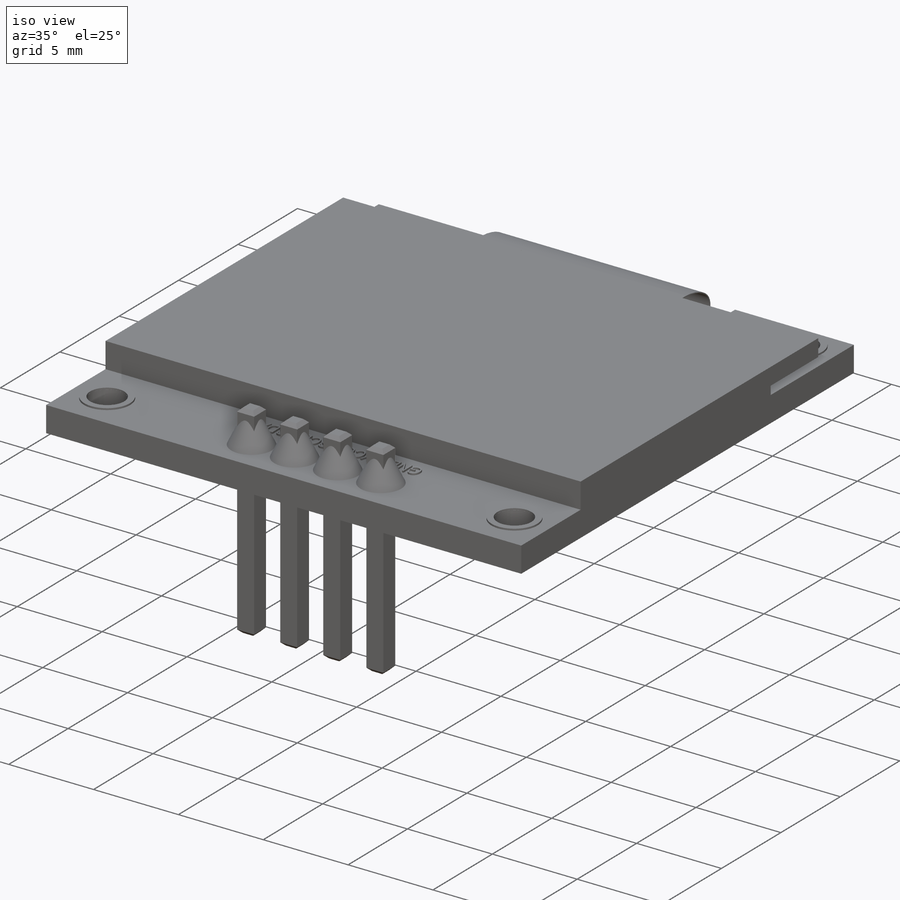
[diagram: iso view]
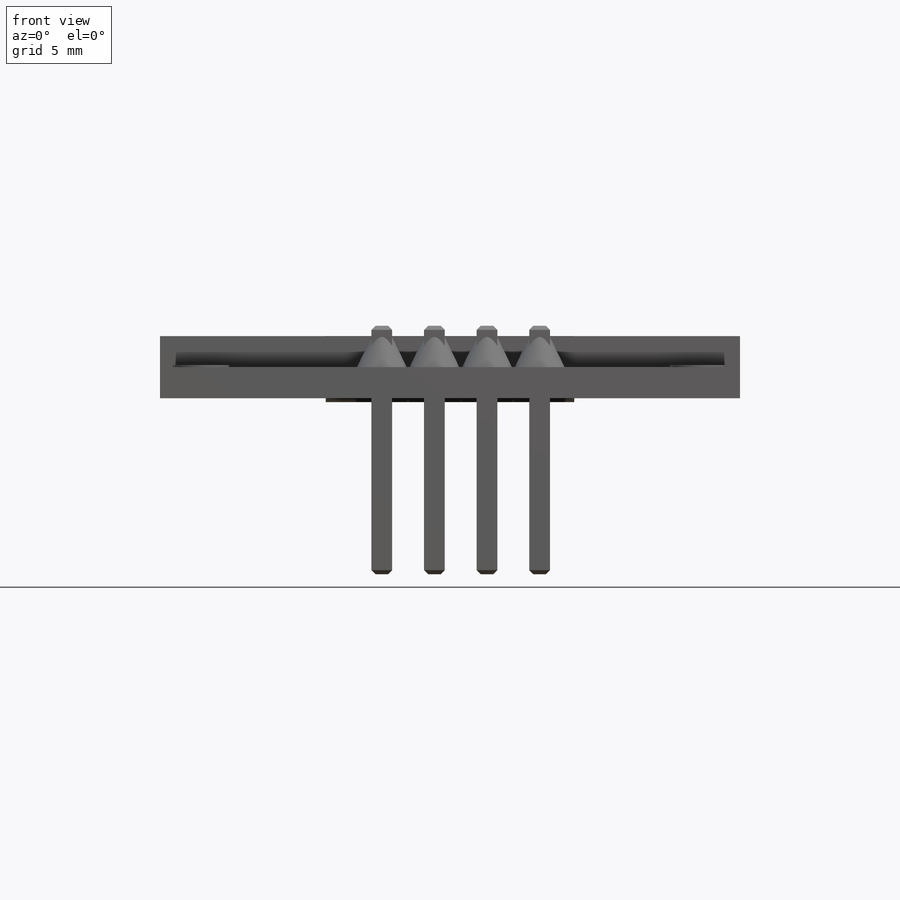
[diagram: front view]
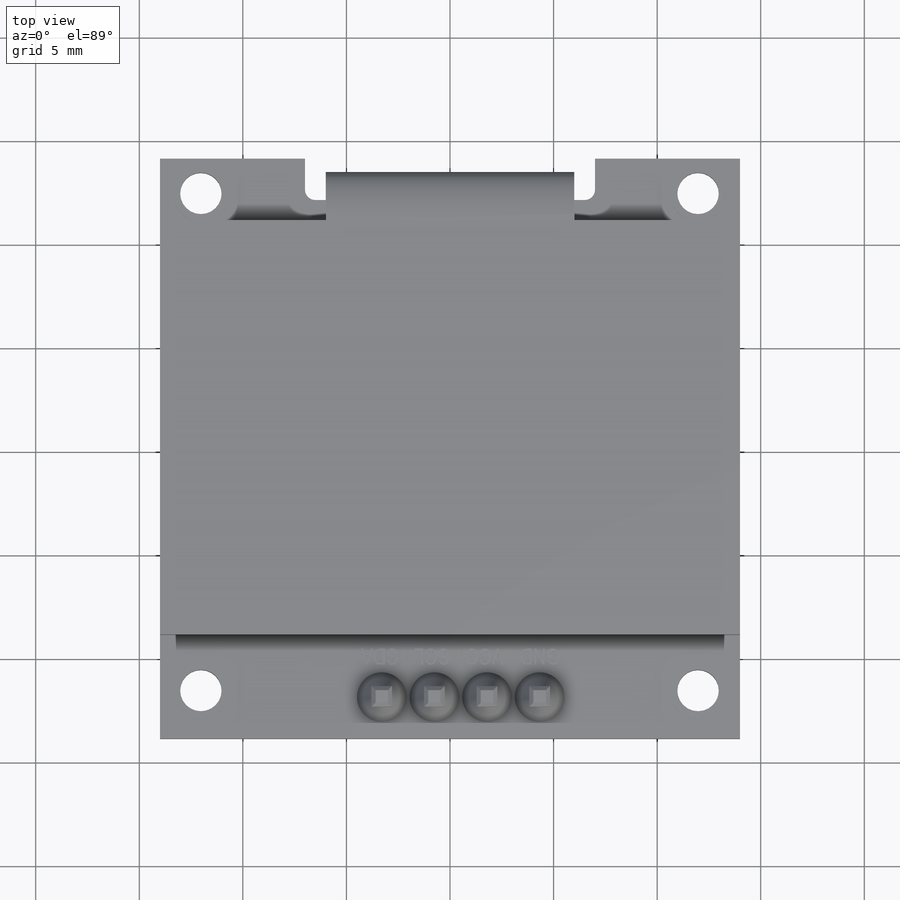
[diagram: top view]
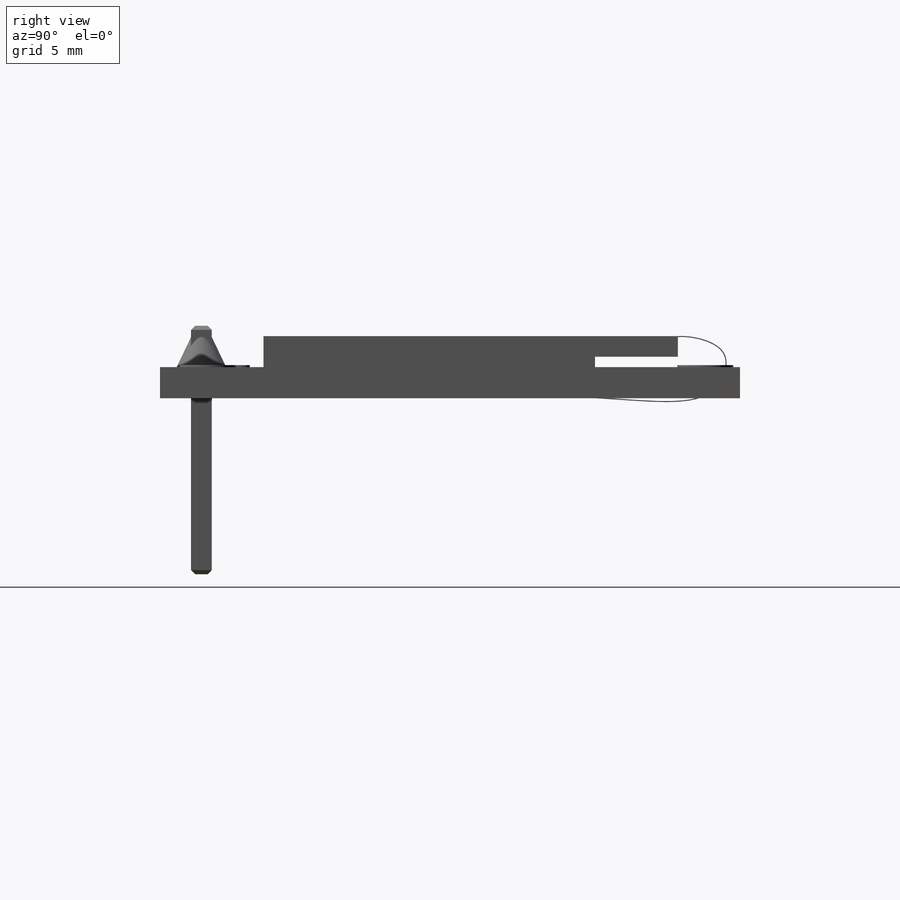
[diagram: right view]
SOLIDWORKS PART (.sldprt)
format: sldprt  version: not decoded by parser v0  size: 971,776 bytes
history: native  units: mm
features: sketch x13, extrude x9, fillet x5, cut_extrude x2, material x1, chamfer x1, plane x1, revolve x1, pattern_linear x1 (+11 scaffold rows collapsed)
feature tree (45):
  scaffold x11  (default folders/planes/origin — collapsed)
  material  "Material <not specified>"
  sketch  "Sketch1"  dims[D1=2.0mm]
  extrude  "Boss-Extrude1"  Depth=1.5mm
  sketch  "Sketch2"  dims[D1=16.0mm]
  extrude  "Boss-Extrude2"  Depth=1.5mm
  sketch  "Sketch3"  dims[D1=1.0mm]
  extrude  "Boss-Extrude3"  [1 undecoded]
  sketch  "Sketch4"  dims[D1=0.05mm]
  extrude  "Boss-Extrude4"  Depth=12mm
  fillet  "Fillet1"  Radius=0.2mm
  sketch  "Sketch5"  dims[D1=2.0mm]
  cut_extrude  "Cut-Extrude1"  [1 undecoded]
  sketch  "Sketch6"  dims[D1=2.54mm]
  extrude  "Boss-Extrude5"  Depth=2mm
  sketch  "Sketch7"  dims[D1=3.0mm]
  extrude  "Boss-Extrude6"  Depth=2.5mm
  sketch  "Sketch8"
  extrude  "Boss-Extrude7"  Depth=2.5mm
  fillet  "Fillet2"  Radius=0.2mm
  fillet  "Fillet3"  Radius=0.2mm
  fillet  "Fillet4"  Radius=0.2mm
  fillet  "Fillet5"  Radius=0.2mm
  chamfer  "Chamfer1"  Distance=0.2mm Angle=45deg
  plane  "Plane1"
  sketch  "Sketch11"
  revolve  "Revolve3"  Angle=360deg
  pattern_linear  "LPattern2"  Count1=4 Count2=1 Spacing1=2.54mm Spacing2=10mm
  sketch  "Sketch12"
  extrude  "Boss-Extrude8"  Depth=0.1mm
  sketch  "Sketch13"  dims[D1=~1.670541mm]
  extrude  "Boss-Extrude9"  Depth=0.1mm
  sketch  "Sketch14"
  sketch  "Sketch15"
  cut_extrude  "Cut-Extrude2"  [1 undecoded]
decode coverage: 24 of 32 modeling features carry decoded parameters
note: ~ marks probable driven/reference dimensions
note: 3 parameter values undecoded
summary: no parameter record found for 3 features
note: suppression state not decoded; provenance and decode notes live in map.json
